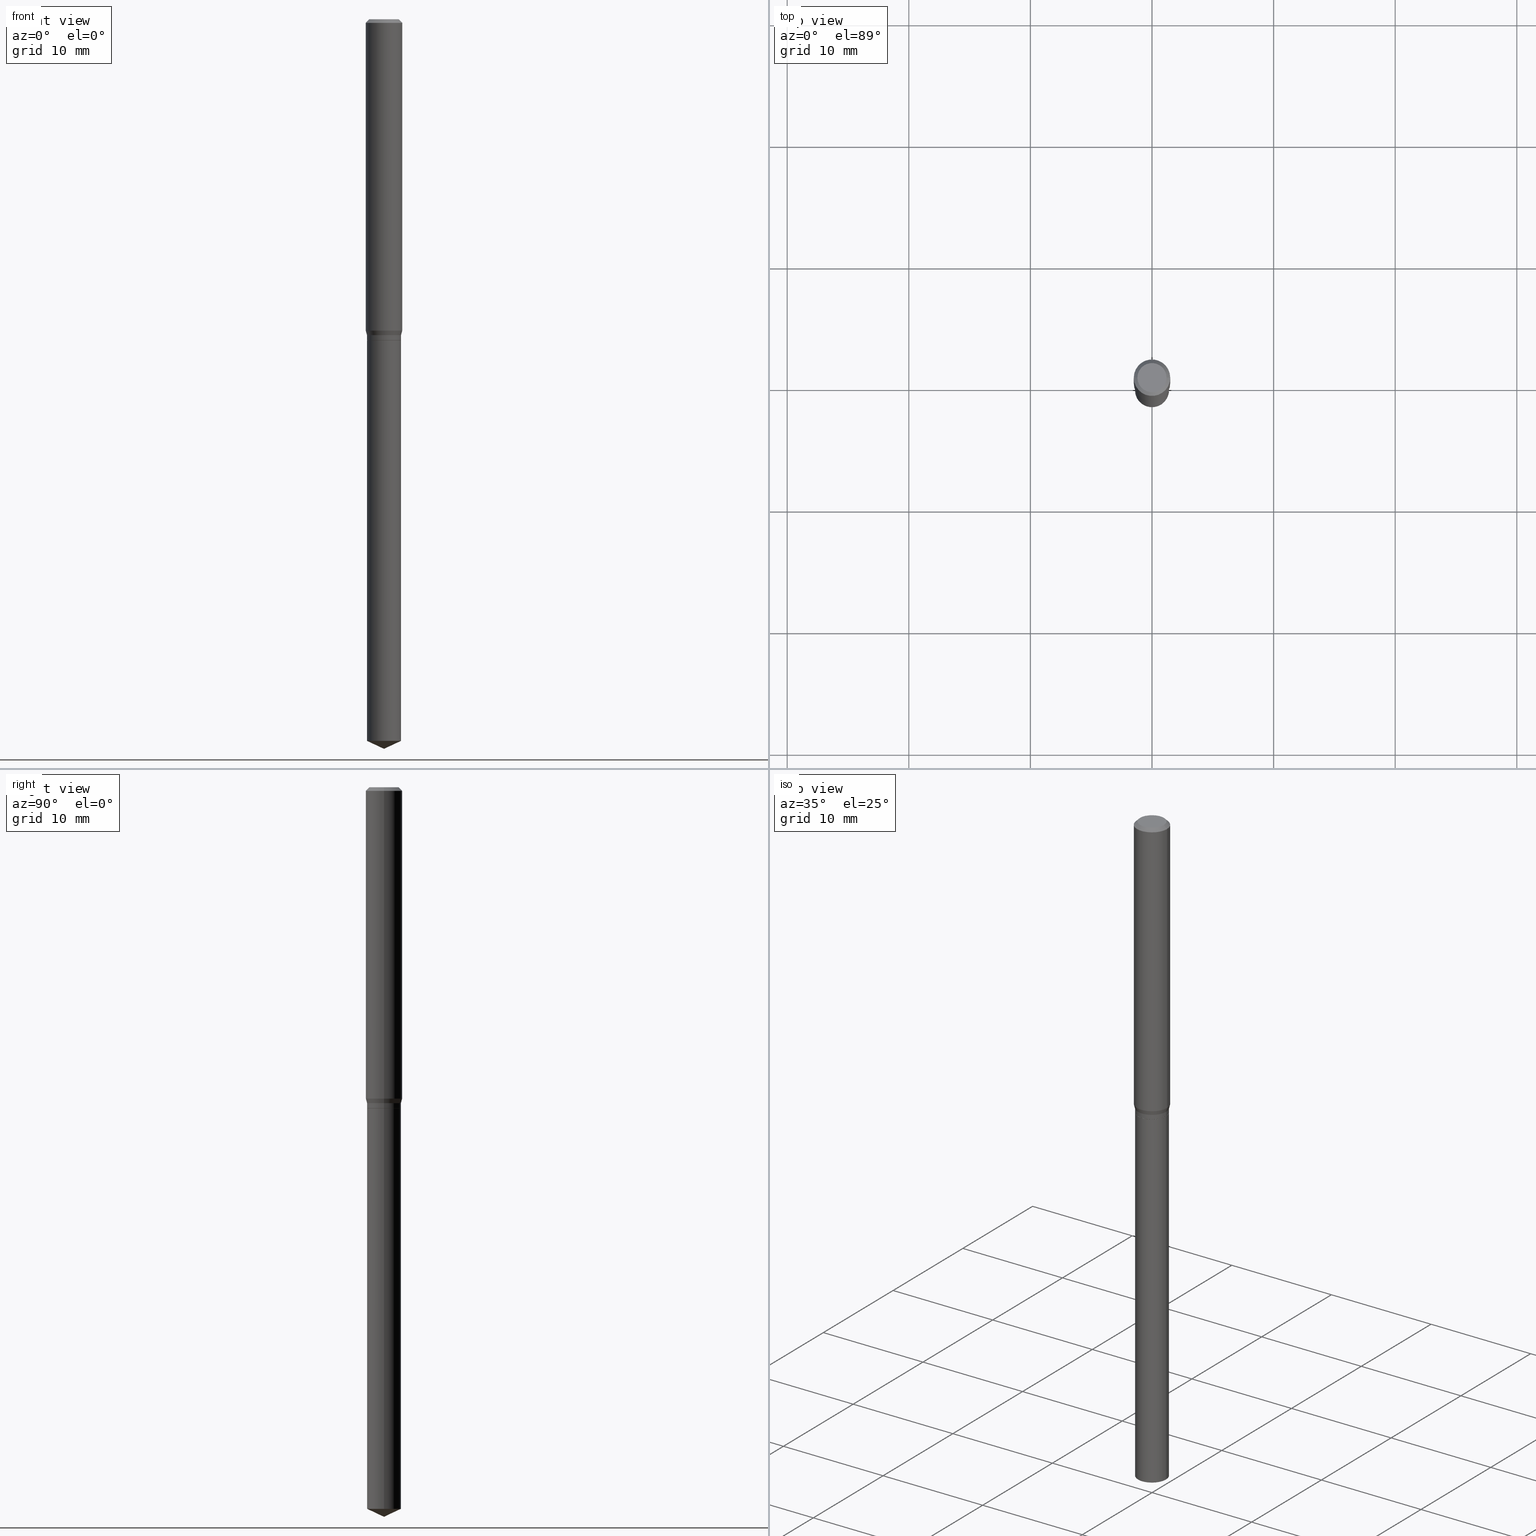
[diagram: canonical four-view strip — front | top / right | iso, engineering-drawing reading convention]
A machine part, canonical four-view strip (front | top / right | iso — engineering-drawing reading convention). The complete STEP part file that produces these views, byte-faithful:
ISO-10303-21;
HEADER;
FILE_DESCRIPTION (( 'STEP AP203' ),
    '1' );
FILE_NAME ('07697.STEP',
    '2024-04-24T01:14:30',
    ( '' ),
    ( '' ),
    'SwSTEP 2.0',
    'SolidWorks 2023',
    '' );
FILE_SCHEMA (( 'CONFIG_CONTROL_DESIGN' ));
ENDSEC;

DATA;
#1 = CARTESIAN_POINT ( 'NONE',  ( 4.132873053354867254E-48, -5.900647395337818946E-34, -1.690012582823346072E-19 ) ) ;
#2 = DIRECTION ( 'NONE',  ( -2.445468806185136597E-29, 3.491481338843145583E-15, 1.000000000000000000 ) ) ;
#3 = PERSON_AND_ORGANIZATION ( #315, #102 ) ;
#4 = CARTESIAN_POINT ( 'NONE',  ( -2.731847993663685378E-16, -8.247577218615278049E-15, -2.362200000000000077 ) ) ;
#5 = EDGE_CURVE ( 'NONE', #15, #290, #286, .T. ) ;
#6 = DATE_TIME_ROLE ( 'classification_date' ) ;
#7 = AXIS2_PLACEMENT_3D ( 'NONE', #425, #387, #307 ) ;
#8 = CARTESIAN_POINT ( 'NONE',  ( 0.05509999999999999620, -3.956197505043167582E-15, -1.022900000000000142 ) ) ;
#9 = LINE ( 'NONE', #4, #317 ) ;
#10 = DIRECTION ( 'NONE',  ( -2.445468806185136877E-29, 3.491481338843145188E-15, 1.000000000000000000 ) ) ;
#11 = ORIENTED_EDGE ( 'NONE', *, *, #232, .T. ) ;
#12 = LOCAL_TIME ( 21, 14, 30.00000000000000000, #32 ) ;
#13 = DIRECTION ( 'NONE',  ( 1.000000000000000000, -6.982962677686265922E-15, 0.000000000000000000 ) ) ;
#14 = EDGE_LOOP ( 'NONE', ( #40, #398, #360, #363 ) ) ;
#15 = VERTEX_POINT ( 'NONE', #148 ) ;
#16 = EDGE_CURVE ( 'NONE', #220, #173, #117, .T. ) ;
#17 = ORIENTED_EDGE ( 'NONE', *, *, #314, .T. ) ;
#18 = FACE_OUTER_BOUND ( 'NONE', #392, .T. ) ;
#19 = EDGE_LOOP ( 'NONE', ( #282, #252, #92, #133 ) ) ;
#20 = CARTESIAN_POINT ( 'NONE',  ( 7.425460077698912185E-30, -6.205708865675813808E-15, -1.039400000000000324 ) ) ;
#21 = ORIENTED_EDGE ( 'NONE', *, *, #110, .T. ) ;
#22 = CARTESIAN_POINT ( 'NONE',  ( 2.541820277148831753E-29, -3.629045703593565980E-15, -1.039400000000000324 ) ) ;
#23 = ADVANCED_FACE ( 'NONE', ( #331 ), #486, .T. ) ;
#24 = CIRCLE ( 'NONE', #212, 0.05509999999999999620 ) ;
#25 = AXIS2_PLACEMENT_3D ( 'NONE', #20, #67, #216 ) ;
#26 = DIRECTION ( 'NONE',  ( -2.445468806185136877E-29, 3.491481338843145188E-15, 1.000000000000000000 ) ) ;
#27 = ORIENTED_EDGE ( 'NONE', *, *, #267, .F. ) ;
#28 = DIRECTION ( 'NONE',  ( -2.445468806185136597E-29, 3.491481338843145583E-15, 1.000000000000000000 ) ) ;
#29 = APPLICATION_PROTOCOL_DEFINITION ( 'international standard', 'config_control_design', 1994, #445 ) ;
#30 = EDGE_CURVE ( 'NONE', #469, #181, #187, .T. ) ;
#31 = ORIENTED_EDGE ( 'NONE', *, *, #144, .F. ) ;
#32 = COORDINATED_UNIVERSAL_TIME_OFFSET ( 5, 0, .BEHIND. ) ;
#33 = AXIS2_PLACEMENT_3D ( 'NONE', #288, #253, #368 ) ;
#34 = APPROVAL_PERSON_ORGANIZATION ( #42, #490, #456 ) ;
#35 = CARTESIAN_POINT ( 'NONE',  ( 2.540597542745738951E-29, -3.627299962924145266E-15, -1.038900000000000379 ) ) ;
#36 = PERSON_AND_ORGANIZATION_ROLE ( 'design_owner' ) ;
#37 = EDGE_CURVE ( 'NONE', #290, #311, #24, .T. ) ;
#38 = DIRECTION ( 'NONE',  ( -2.445468806185136597E-29, 3.491481338843145583E-15, 1.000000000000000000 ) ) ;
#39 = DATE_AND_TIME ( #123, #12 ) ;
#40 = ORIENTED_EDGE ( 'NONE', *, *, #30, .F. ) ;
#41 = CARTESIAN_POINT ( 'NONE',  ( 2.540597542745738951E-29, -3.627299962924145266E-15, -1.038900000000000379 ) ) ;
#42 = PERSON_AND_ORGANIZATION ( #315, #102 ) ;
#43 = CIRCLE ( 'NONE', #385, 0.05510000000000000314 ) ;
#44 = DIRECTION ( 'NONE',  ( 1.000000000000000000, 0.000000000000000000, 0.000000000000000000 ) ) ;
#45 = CYLINDRICAL_SURFACE ( 'NONE', #344, 0.05509999999999999620 ) ;
#46 = ORIENTED_EDGE ( 'NONE', *, *, #110, .F. ) ;
#47 = CARTESIAN_POINT ( 'NONE',  ( 2.465419917206395348E-29, -3.519966237789199731E-15, -1.008158399310102649 ) ) ;
#48 = ORIENTED_EDGE ( 'NONE', *, *, #477, .T. ) ;
#49 = APPROVAL ( #190, 'UNSPECIFIED' ) ;
#50 = CARTESIAN_POINT ( 'NONE',  ( 2.888098660104663766E-31, -4.123439461173779647E-17, -0.01181000000000007044 ) ) ;
#51 = VECTOR ( 'NONE', #222, 39.37007874015748143 ) ;
#52 = ORIENTED_EDGE ( 'NONE', *, *, #260, .F. ) ;
#53 = DIRECTION ( 'NONE',  ( -2.445468806185136597E-29, 3.491481338843145583E-15, 1.000000000000000000 ) ) ;
#54 = CC_DESIGN_PERSON_AND_ORGANIZATION_ASSIGNMENT ( #412, #262, ( #177 ) ) ;
#55 = EDGE_LOOP ( 'NONE', ( #451, #231, #21, #475 ) ) ;
#56 = ORIENTED_EDGE ( 'NONE', *, *, #127, .F. ) ;
#57 =( NAMED_UNIT ( * ) PLANE_ANGLE_UNIT ( ) SI_UNIT ( $, .RADIAN. ) );
#58 = DIRECTION ( 'NONE',  ( -2.445468806185136597E-29, 3.491481338843145583E-15, 1.000000000000000000 ) ) ;
#59 = VECTOR ( 'NONE', #66, 39.37007874015748143 ) ;
#60 = AXIS2_PLACEMENT_3D ( 'NONE', #47, #427, #199 ) ;
#61 = ORIENTED_EDGE ( 'NONE', *, *, #151, .T. ) ;
#62 = DIRECTION ( 'NONE',  ( -2.445468806185136597E-29, 3.491481338843145583E-15, 1.000000000000000000 ) ) ;
#63 = EDGE_LOOP ( 'NONE', ( #17, #313 ) ) ;
#64 = EDGE_CURVE ( 'NONE', #323, #173, #182, .T. ) ;
#65 = FACE_OUTER_BOUND ( 'NONE', #63, .T. ) ;
#66 = DIRECTION ( 'NONE',  ( -2.445468806185136877E-29, 3.491481338843145188E-15, 1.000000000000000000 ) ) ;
#67 = DIRECTION ( 'NONE',  ( 2.438088387897960049E-29, -3.491481338843145188E-15, -1.000000000000000000 ) ) ;
#68 = CONICAL_SURFACE ( 'NONE', #483, 84.42940631927126560, 1.134464013796302018 ) ;
#69 = CARTESIAN_POINT ( 'NONE',  ( -0.05905000000000006077, 4.195754854663395916E-16, -2.904631170795524694E-30 ) ) ;
#70 = LOCAL_TIME ( 21, 14, 30.00000000000000000, #299 ) ;
#71 = ADVANCED_FACE ( 'NONE', ( #115 ), #485, .F. ) ;
#72 = CARTESIAN_POINT ( 'NONE',  ( 2.541820277148831753E-29, -3.629045703593566769E-15, -1.039400000000000324 ) ) ;
#73 = FACE_OUTER_BOUND ( 'NONE', #170, .T. ) ;
#74 = CALENDAR_DATE ( 2024, 23, 4 ) ;
#75 = CARTESIAN_POINT ( 'NONE',  ( 2.541820277148831753E-29, -3.629045703593565980E-15, -1.039400000000000324 ) ) ;
#76 = AXIS2_PLACEMENT_3D ( 'NONE', #160, #122, #237 ) ;
#77 = DIRECTION ( 'NONE',  ( -2.445468806185136597E-29, 3.491481338843145583E-15, 1.000000000000000000 ) ) ;
#78 = DATE_AND_TIME ( #416, #168 ) ;
#79 = ORIENTED_EDGE ( 'NONE', *, *, #346, .F. ) ;
#80 = EDGE_CURVE ( 'NONE', #352, #402, #457, .T. ) ;
#81 =( CONVERSION_BASED_UNIT ( 'INCH', #476 ) LENGTH_UNIT ( ) NAMED_UNIT ( #106 ) );
#82 = DIRECTION ( 'NONE',  ( -2.445468806185136597E-29, 3.491481338843145583E-15, 1.000000000000000000 ) ) ;
#83 = APPROVAL_DATE_TIME ( #39, #49 ) ;
#84 = CARTESIAN_POINT ( 'NONE',  ( -0.04724000000000000421, 3.504923541997677355E-16, -3.380025165670481712E-19 ) ) ;
#85 = DATE_TIME_ROLE ( 'creation_date' ) ;
#86 = CARTESIAN_POINT ( 'NONE',  ( 2.501470041846776591E-29, -3.571436261502653996E-15, -1.022900000000000142 ) ) ;
#87 = ADVANCED_FACE ( 'NONE', ( #154 ), #109, .T. ) ;
#88 = ORIENTED_EDGE ( 'NONE', *, *, #238, .T. ) ;
#89 = LINE ( 'NONE', #230, #112 ) ;
#90 = UNCERTAINTY_MEASURE_WITH_UNIT (LENGTH_MEASURE( 1.000000000000000082E-05 ), #81, 'distance_accuracy_value', 'NONE');
#91 = EDGE_LOOP ( 'NONE', ( #394, #179, #209, #478 ) ) ;
#92 = ORIENTED_EDGE ( 'NONE', *, *, #120, .F. ) ;
#93 = DIRECTION ( 'NONE',  ( -2.445468806185136877E-29, 3.491481338843145188E-15, 1.000000000000000000 ) ) ;
#94 = AXIS2_PLACEMENT_3D ( 'NONE', #35, #195, #482 ) ;
#95 = EDGE_CURVE ( 'NONE', #136, #15, #261, .T. ) ;
#96 = ORIENTED_EDGE ( 'NONE', *, *, #444, .T. ) ;
#97 = EDGE_LOOP ( 'NONE', ( #275, #103, #145, #46 ) ) ;
#98 = CARTESIAN_POINT ( 'NONE',  ( -0.05905000000000011628, -3.100390752322860238E-15, -1.008158399310102649 ) ) ;
#99 = ORIENTED_EDGE ( 'NONE', *, *, #164, .F. ) ;
#100 = DIRECTION ( 'NONE',  ( 0.2588190451025215721, 1.565188264969619995E-15, 0.9659258262890679791 ) ) ;
#101 = CONICAL_SURFACE ( 'NONE', #308, 0.05904999999999999832, 0.7853981633974452814 ) ;
#102 = ORGANIZATION ( 'UNSPECIFIED', 'UNSPECIFIED', '' ) ;
#103 = ORIENTED_EDGE ( 'NONE', *, *, #306, .T. ) ;
#104 = ADVANCED_FACE ( 'NONE', ( #73 ), #153, .T. ) ;
#105 = LINE ( 'NONE', #361, #390 ) ;
#106 = DIMENSIONAL_EXPONENTS ( 1.000000000000000000, 0.000000000000000000, 0.000000000000000000, 0.000000000000000000, 0.000000000000000000, 0.000000000000000000, 0.000000000000000000 ) ;
#107 = ORIENTED_EDGE ( 'NONE', *, *, #37, .F. ) ;
#108 = CARTESIAN_POINT ( 'NONE',  ( -0.05509999999999999620, -7.766359613999372062E-15, -2.336506448035659211 ) ) ;
#109 = CYLINDRICAL_SURFACE ( 'NONE', #329, 0.05510000000000000314 ) ;
#110 = EDGE_CURVE ( 'NONE', #204, #402, #289, .T. ) ;
#111 = AXIS2_PLACEMENT_3D ( 'NONE', #371, #448, #453 ) ;
#112 = VECTOR ( 'NONE', #335, 39.37007874015748143 ) ;
#113 = DIRECTION ( 'NONE',  ( -0.7071067811864205632, 7.493145998869895043E-15, 0.7071067811866742492 ) ) ;
#114 = CC_DESIGN_APPROVAL ( #49, ( #460 ) ) ;
#115 = FACE_OUTER_BOUND ( 'NONE', #141, .T. ) ;
#116 = DATE_AND_TIME ( #74, #424 ) ;
#117 = LINE ( 'NONE', #328, #59 ) ;
#118 = CYLINDRICAL_SURFACE ( 'NONE', #277, 0.05905000000000006077 ) ;
#119 = SECURITY_CLASSIFICATION_LEVEL ( 'unclassified' ) ;
#120 = EDGE_CURVE ( 'NONE', #15, #181, #191, .T. ) ;
#121 = DIRECTION ( 'NONE',  ( -2.445468806185136597E-29, 3.491481338843145583E-15, 1.000000000000000000 ) ) ;
#122 = DIRECTION ( 'NONE',  ( -2.445468806185136597E-29, 3.491481338843145583E-15, 1.000000000000000000 ) ) ;
#123 = CALENDAR_DATE ( 2024, 23, 4 ) ;
#124 = CARTESIAN_POINT ( 'NONE',  ( 0.000000000000000000, 0.000000000000000000, 0.000000000000000000 ) ) ;
#125 = LINE ( 'NONE', #341, #161 ) ;
#126 = DATE_AND_TIME ( #454, #337 ) ;
#127 = EDGE_CURVE ( 'NONE', #318, #402, #447, .T. ) ;
#128 = CARTESIAN_POINT ( 'NONE',  ( 2.541820277148832313E-29, -3.629045703593567558E-15, -1.039400000000000546 ) ) ;
#129 = CIRCLE ( 'NONE', #138, 0.05460000000000000270 ) ;
#130 = AXIS2_PLACEMENT_3D ( 'NONE', #137, #53, #354 ) ;
#131 = CARTESIAN_POINT ( 'NONE',  ( 0.000000000000000000, 0.000000000000000000, 0.000000000000000000 ) ) ;
#132 = ORIENTED_EDGE ( 'NONE', *, *, #5, .F. ) ;
#133 = ORIENTED_EDGE ( 'NONE', *, *, #95, .F. ) ;
#134 = ADVANCED_FACE ( 'NONE', ( #370 ), #101, .T. ) ;
#135 = MECHANICAL_CONTEXT ( 'NONE', #432, 'mechanical' ) ;
#136 = VERTEX_POINT ( 'NONE', #455 ) ;
#137 = CARTESIAN_POINT ( 'NONE',  ( 8.265746106709734507E-48, -1.180129479067563789E-33, -3.380025165646692144E-19 ) ) ;
#138 = AXIS2_PLACEMENT_3D ( 'NONE', #302, #338, #203 ) ;
#139 = VERTEX_POINT ( 'NONE', #266 ) ;
#140 = CARTESIAN_POINT ( 'NONE',  ( 8.265746106709734507E-48, -1.180129479067563789E-33, -3.380025165646692144E-19 ) ) ;
#141 = EDGE_LOOP ( 'NONE', ( #437, #96 ) ) ;
#142 = PRODUCT_DEFINITION_SHAPE ( 'NONE', 'NONE',  #177 ) ;
#143 = CARTESIAN_POINT ( 'NONE',  ( -0.05509999999999999620, -3.207859064809584554E-15, -1.022900000000000142 ) ) ;
#144 = EDGE_CURVE ( 'NONE', #208, #318, #200, .T. ) ;
#145 = ORIENTED_EDGE ( 'NONE', *, *, #80, .T. ) ;
#146 = CARTESIAN_POINT ( 'NONE',  ( 0.05904999999999999832, -4.463468013801466955E-16, -0.01181000000000007044 ) ) ;
#147 = CONICAL_SURFACE ( 'NONE', #240, 0.05904999999999999832, 0.7853981633974452814 ) ;
#148 = CARTESIAN_POINT ( 'NONE',  ( 0.05509999999999999620, -4.012061206464658852E-15, -1.038900000000000379 ) ) ;
#149 = CARTESIAN_POINT ( 'NONE',  ( 2.501470041846776591E-29, -3.571436261502653996E-15, -1.022900000000000142 ) ) ;
#150 = CARTESIAN_POINT ( 'NONE',  ( 2.888098660104663766E-31, -4.123439461173779647E-17, -0.01181000000000007044 ) ) ;
#151 = EDGE_CURVE ( 'NONE', #318, #208, #167, .T. ) ;
#152 = CARTESIAN_POINT ( 'NONE',  ( 0.05509999999999999620, -3.847612435405132409E-16, 2.686773403463560667E-30 ) ) ;
#153 = CONICAL_SURFACE ( 'NONE', #397, 0.05509999999999999620, 0.2617993877991502960 ) ;
#154 = FACE_OUTER_BOUND ( 'NONE', #440, .T. ) ;
#155 = DIRECTION ( 'NONE',  ( -2.445468806185136597E-29, 3.491481338843145583E-15, 1.000000000000000000 ) ) ;
#156 = APPROVAL_DATE_TIME ( #419, #490 ) ;
#157 = ADVANCED_FACE ( 'NONE', ( #268 ), #45, .T. ) ;
#158 = DIRECTION ( 'NONE',  ( -1.000000000000000000, 6.982962677686266711E-15, 0.000000000000000000 ) ) ;
#159 = SHAPE_DEFINITION_REPRESENTATION ( #142, #364 ) ;
#160 = CARTESIAN_POINT ( 'NONE',  ( 2.888098660104663766E-31, -4.123439461173779647E-17, -0.01181000000000007044 ) ) ;
#161 = VECTOR ( 'NONE', #10, 39.37007874015748143 ) ;
#162 = CARTESIAN_POINT ( 'NONE',  ( 0.000000000000000000, 0.000000000000000000, 0.000000000000000000 ) ) ;
#163 = DIRECTION ( 'NONE',  ( 1.000000000000000000, -6.982962677686274599E-15, 0.000000000000000000 ) ) ;
#164 = EDGE_CURVE ( 'NONE', #136, #469, #336, .T. ) ;
#165 = DIRECTION ( 'NONE',  ( 1.000000000000000000, -6.982962677686265922E-15, 0.000000000000000000 ) ) ;
#166 = LINE ( 'NONE', #146, #353 ) ;
#167 = CIRCLE ( 'NONE', #60, 0.05905000000000011628 ) ;
#168 = LOCAL_TIME ( 21, 14, 30.00000000000000000, #196 ) ;
#169 = DIRECTION ( 'NONE',  ( 1.000000000000000000, -6.982962677686265133E-15, 0.000000000000000000 ) ) ;
#170 = EDGE_LOOP ( 'NONE', ( #276, #88, #309, #426 ) ) ;
#171 = EDGE_CURVE ( 'NONE', #402, #352, #207, .T. ) ;
#172 = ORIENTED_EDGE ( 'NONE', *, *, #463, .F. ) ;
#173 = VERTEX_POINT ( 'NONE', #269 ) ;
#174 = VECTOR ( 'NONE', #26, 39.37007874015748143 ) ;
#175 = CC_DESIGN_APPROVAL ( #490, ( #177 ) ) ;
#176 = ORIENTED_EDGE ( 'NONE', *, *, #120, .T. ) ;
#177 = PRODUCT_DEFINITION ( 'UNKNOWN', '', #185, #396 ) ;
#178 = CARTESIAN_POINT ( 'NONE',  ( 2.731847993664840566E-16, -8.247577218615281204E-15, -2.362200000000000077 ) ) ;
#179 = ORIENTED_EDGE ( 'NONE', *, *, #127, .T. ) ;
#180 = CARTESIAN_POINT ( 'NONE',  ( -0.05510000000000000314, -5.501948135094560496E-15, -1.039400000000000324 ) ) ;
#181 = VERTEX_POINT ( 'NONE', #389 ) ;
#182 = CIRCLE ( 'NONE', #271, 0.05510000000000000314 ) ;
#183 = DIRECTION ( 'NONE',  ( 1.000000000000000000, -6.982962677686266711E-15, 4.876185090822587894E-29 ) ) ;
#184 = AXIS2_PLACEMENT_3D ( 'NONE', #249, #58, #442 ) ;
#185 = PRODUCT_DEFINITION_FORMATION_WITH_SPECIFIED_SOURCE ( 'ANY', '', #251, .NOT_KNOWN. ) ;
#186 = ADVANCED_FACE ( 'NONE', ( #272 ), #147, .T. ) ;
#187 = LINE ( 'NONE', #228, #351 ) ;
#188 = ORIENTED_EDGE ( 'NONE', *, *, #211, .T. ) ;
#189 = DIRECTION ( 'NONE',  ( 1.000000000000000000, -6.982962677686265133E-15, 0.000000000000000000 ) ) ;
#190 = APPROVAL_STATUS ( 'not_yet_approved' ) ;
#191 = CIRCLE ( 'NONE', #94, 0.05509999999999999620 ) ;
#192 = CONICAL_SURFACE ( 'NONE', #386, 0.05509999999999999620, 0.2617993877991502960 ) ;
#193 = EDGE_LOOP ( 'NONE', ( #56, #61, #480, #284 ) ) ;
#194 =( GEOMETRIC_REPRESENTATION_CONTEXT ( 3 ) GLOBAL_UNCERTAINTY_ASSIGNED_CONTEXT ( ( #90 ) ) GLOBAL_UNIT_ASSIGNED_CONTEXT ( ( #81, #57, #382 ) ) REPRESENTATION_CONTEXT ( 'NONE', 'WORKASPACE' ) );
#195 = DIRECTION ( 'NONE',  ( -2.445468806185136597E-29, 3.491481338843145583E-15, 1.000000000000000000 ) ) ;
#196 = COORDINATED_UNIVERSAL_TIME_OFFSET ( 5, 0, .BEHIND. ) ;
#197 = DIRECTION ( 'NONE',  ( -1.000000000000000000, 6.982962677686266711E-15, 0.000000000000000000 ) ) ;
#198 = APPROVAL_STATUS ( 'not_yet_approved' ) ;
#199 = DIRECTION ( 'NONE',  ( 1.000000000000000000, -6.982962677686266711E-15, 0.000000000000000000 ) ) ;
#200 = CIRCLE ( 'NONE', #273, 0.05905000000000011628 ) ;
#201 = CC_DESIGN_PERSON_AND_ORGANIZATION_ASSIGNMENT ( #381, #229, ( #185 ) ) ;
#202 = CARTESIAN_POINT ( 'NONE',  ( 0.000000000000000000, 0.000000000000000000, 0.000000000000000000 ) ) ;
#203 = DIRECTION ( 'NONE',  ( 1.000000000000000000, -6.982962677686265133E-15, 0.000000000000000000 ) ) ;
#204 = VERTEX_POINT ( 'NONE', #84 ) ;
#205 = PLANE ( 'NONE',  #25 ) ;
#206 = APPLICATION_PROTOCOL_DEFINITION ( 'international standard', 'config_control_design', 1994, #432 ) ;
#207 = CIRCLE ( 'NONE', #76, 0.05904999999999999832 ) ;
#208 = VERTEX_POINT ( 'NONE', #468 ) ;
#209 = ORIENTED_EDGE ( 'NONE', *, *, #80, .F. ) ;
#210 = ORIENTED_EDGE ( 'NONE', *, *, #293, .F. ) ;
#211 = EDGE_CURVE ( 'NONE', #347, #220, #414, .T. ) ;
#212 = AXIS2_PLACEMENT_3D ( 'NONE', #259, #325, #409 ) ;
#213 = AXIS2_PLACEMENT_3D ( 'NONE', #22, #484, #321 ) ;
#214 = CARTESIAN_POINT ( 'NONE',  ( 0.05905000000000006077, -4.123439461173744764E-16, 2.879382386107503023E-30 ) ) ;
#215 = ORIENTED_EDGE ( 'NONE', *, *, #238, .F. ) ;
#216 = DIRECTION ( 'NONE',  ( -1.000000000000000000, 6.982962677686265922E-15, -4.876176775795935793E-29 ) ) ;
#217 = ORIENTED_EDGE ( 'NONE', *, *, #314, .F. ) ;
#218 = LINE ( 'NONE', #214, #449 ) ;
#219 = ADVANCED_FACE ( 'NONE', ( #235 ), #233, .F. ) ;
#220 = VERTEX_POINT ( 'NONE', #236 ) ;
#221 = DIRECTION ( 'NONE',  ( -2.445468806185136877E-29, 3.491481338843145188E-15, 1.000000000000000000 ) ) ;
#222 = DIRECTION ( 'NONE',  ( -2.445468806185136877E-29, 3.491481338843145188E-15, 1.000000000000000000 ) ) ;
#223 = ORIENTED_EDGE ( 'NONE', *, *, #37, .T. ) ;
#224 = CARTESIAN_POINT ( 'NONE',  ( 2.501470041846776591E-29, -3.571436261502653996E-15, -1.022900000000000142 ) ) ;
#225 = APPROVAL_ROLE ( '' ) ;
#226 = ADVANCED_FACE ( 'NONE', ( #383 ), #118, .T. ) ;
#227 = AXIS2_PLACEMENT_3D ( 'NONE', #86, #339, #380 ) ;
#228 = CARTESIAN_POINT ( 'NONE',  ( -0.05460000000000000270, -3.241089369868552196E-15, -1.039400000000000546 ) ) ;
#229 = PERSON_AND_ORGANIZATION_ROLE ( 'design_supplier' ) ;
#230 = CARTESIAN_POINT ( 'NONE',  ( -0.05509999999999999620, -3.179927214098839314E-15, -1.022900000000000142 ) ) ;
#231 = ORIENTED_EDGE ( 'NONE', *, *, #379, .F. ) ;
#232 = EDGE_CURVE ( 'NONE', #181, #15, #441, .T. ) ;
#233 = PLANE ( 'NONE',  #7 ) ;
#234 = AXIS2_PLACEMENT_3D ( 'NONE', #150, #254, #487 ) ;
#235 = FACE_OUTER_BOUND ( 'NONE', #247, .T. ) ;
#236 = CARTESIAN_POINT ( 'NONE',  ( 0.05509999999999999620, -8.542629904943700330E-15, -2.336506448035659211 ) ) ;
#237 = DIRECTION ( 'NONE',  ( 1.000000000000000000, -6.982962677686266711E-15, 0.000000000000000000 ) ) ;
#238 = EDGE_CURVE ( 'NONE', #311, #290, #248, .T. ) ;
#239 = ORIENTED_EDGE ( 'NONE', *, *, #64, .F. ) ;
#240 = AXIS2_PLACEMENT_3D ( 'NONE', #274, #418, #158 ) ;
#241 = CARTESIAN_POINT ( 'NONE',  ( 5.713853634121637079E-29, -8.157868661403186744E-15, -2.336506448035659211 ) ) ;
#242 = AXIS2_PLACEMENT_3D ( 'NONE', #140, #256, #183 ) ;
#243 = ORIENTED_EDGE ( 'NONE', *, *, #293, .T. ) ;
#244 = PRODUCT_RELATED_PRODUCT_CATEGORY ( 'detail', '', ( #251 ) ) ;
#245 = EDGE_LOOP ( 'NONE', ( #223, #407, #31, #79 ) ) ;
#246 = DIRECTION ( 'NONE',  ( 1.000000000000000000, -6.982962677686267499E-15, 0.000000000000000000 ) ) ;
#247 = EDGE_LOOP ( 'NONE', ( #99, #27 ) ) ;
#248 = CIRCLE ( 'NONE', #227, 0.05509999999999999620 ) ;
#249 = CARTESIAN_POINT ( 'NONE',  ( 2.541820277148832313E-29, -3.629045703593567558E-15, -1.039400000000000546 ) ) ;
#250 = APPROVAL_PERSON_ORGANIZATION ( #384, #279, #333 ) ;
#251 = PRODUCT ( '07697', '07697', '', ( #135 ) ) ;
#252 = ORIENTED_EDGE ( 'NONE', *, *, #30, .T. ) ;
#253 = DIRECTION ( 'NONE',  ( -2.445468806185136597E-29, 3.491481338843145583E-15, 1.000000000000000000 ) ) ;
#254 = DIRECTION ( 'NONE',  ( -2.445468806185136597E-29, 3.491481338843145583E-15, 1.000000000000000000 ) ) ;
#255 = EDGE_CURVE ( 'NONE', #311, #318, #89, .T. ) ;
#256 = DIRECTION ( 'NONE',  ( -2.445468806185136597E-29, 3.491481338843145583E-15, 1.000000000000000000 ) ) ;
#257 = DIRECTION ( 'NONE',  ( -1.000000000000000000, 6.982962677686265922E-15, -4.876176775795935793E-29 ) ) ;
#258 = CIRCLE ( 'NONE', #242, 0.04724000000000000421 ) ;
#259 = CARTESIAN_POINT ( 'NONE',  ( 2.501470041846776591E-29, -3.571436261502653996E-15, -1.022900000000000142 ) ) ;
#260 = EDGE_CURVE ( 'NONE', #139, #347, #9, .T. ) ;
#261 = LINE ( 'NONE', #411, #301 ) ;
#262 = PERSON_AND_ORGANIZATION_ROLE ( 'creator' ) ;
#263 = DIRECTION ( 'NONE',  ( 2.438088387897960049E-29, -3.491481338843145188E-15, -1.000000000000000000 ) ) ;
#264 = PERSON_AND_ORGANIZATION ( #315, #102 ) ;
#265 = VECTOR ( 'NONE', #281, 39.37007874015748854 ) ;
#266 = CARTESIAN_POINT ( 'NONE',  ( 5.776686413970529753E-29, -8.247577218615279626E-15, -2.362200000000000077 ) ) ;
#267 = EDGE_CURVE ( 'NONE', #469, #136, #129, .T. ) ;
#268 = FACE_OUTER_BOUND ( 'NONE', #342, .T. ) ;
#269 = CARTESIAN_POINT ( 'NONE',  ( 0.05510000000000000314, -4.013806947134079566E-15, -1.039400000000000324 ) ) ;
#270 = COORDINATED_UNIVERSAL_TIME_OFFSET ( 5, 0, .BEHIND. ) ;
#271 = AXIS2_PLACEMENT_3D ( 'NONE', #72, #28, #189 ) ;
#272 = FACE_OUTER_BOUND ( 'NONE', #97, .T. ) ;
#273 = AXIS2_PLACEMENT_3D ( 'NONE', #415, #461, #332 ) ;
#274 = CARTESIAN_POINT ( 'NONE',  ( 2.888098660104663766E-31, -4.123439461173779647E-17, -0.01181000000000007044 ) ) ;
#275 = ORIENTED_EDGE ( 'NONE', *, *, #444, .F. ) ;
#276 = ORIENTED_EDGE ( 'NONE', *, *, #255, .F. ) ;
#277 = AXIS2_PLACEMENT_3D ( 'NONE', #202, #38, #304 ) ;
#278 = CARTESIAN_POINT ( 'NONE',  ( -0.05460000000000000270, -3.238440142694440995E-15, -1.039400000000000546 ) ) ;
#279 = APPROVAL ( #198, 'UNSPECIFIED' ) ;
#280 = ORIENTED_EDGE ( 'NONE', *, *, #477, .F. ) ;
#281 = DIRECTION ( 'NONE',  ( 0.9063077870366447186, -4.853149677051304637E-15, 0.4226182617407103770 ) ) ;
#282 = ORIENTED_EDGE ( 'NONE', *, *, #164, .T. ) ;
#283 = DIRECTION ( 'NONE',  ( -2.445468806185136597E-29, 3.491481338843145583E-15, 1.000000000000000000 ) ) ;
#284 = ORIENTED_EDGE ( 'NONE', *, *, #171, .F. ) ;
#285 = FACE_OUTER_BOUND ( 'NONE', #19, .T. ) ;
#286 = LINE ( 'NONE', #152, #174 ) ;
#287 = CC_DESIGN_DATE_AND_TIME_ASSIGNMENT ( #78, #6, ( #460 ) ) ;
#288 = CARTESIAN_POINT ( 'NONE',  ( -9.050161304213721862E-28, 1.292123180114298104E-13, 37.00787874015748002 ) ) ;
#289 = LINE ( 'NONE', #297, #291 ) ;
#290 = VERTEX_POINT ( 'NONE', #8 ) ;
#291 = VECTOR ( 'NONE', #404, 39.37007874015748143 ) ;
#292 = AXIS2_PLACEMENT_3D ( 'NONE', #41, #466, #165 ) ;
#293 = EDGE_CURVE ( 'NONE', #181, #311, #125, .T. ) ;
#294 = APPROVAL_PERSON_ORGANIZATION ( #3, #49, #225 ) ;
#295 = DIRECTION ( 'NONE',  ( -2.445468806185136597E-29, 3.491481338843145583E-15, 1.000000000000000000 ) ) ;
#296 = COORDINATED_UNIVERSAL_TIME_OFFSET ( 5, 0, .BEHIND. ) ;
#297 = CARTESIAN_POINT ( 'NONE',  ( -0.05904999999999999832, 3.711095515056362547E-16, -0.01181000000000007044 ) ) ;
#298 = DIRECTION ( 'NONE',  ( 1.000000000000000000, -6.982962677686265133E-15, 0.000000000000000000 ) ) ;
#299 = COORDINATED_UNIVERSAL_TIME_OFFSET ( 5, 0, .BEHIND. ) ;
#300 = FACE_OUTER_BOUND ( 'NONE', #433, .T. ) ;
#301 = VECTOR ( 'NONE', #410, 39.37007874015748854 ) ;
#302 = CARTESIAN_POINT ( 'NONE',  ( 2.541820277148832313E-29, -3.629045703593567558E-15, -1.039400000000000546 ) ) ;
#303 = CARTESIAN_POINT ( 'NONE',  ( -0.05510000000000000314, -3.237536656189751298E-15, -1.039400000000000324 ) ) ;
#304 = DIRECTION ( 'NONE',  ( 1.000000000000000000, -6.982962677686266711E-15, 4.876176775795935793E-29 ) ) ;
#305 = DIRECTION ( 'NONE',  ( -0.9063077870366447186, 7.915267918739016209E-15, 0.4226182617407103770 ) ) ;
#306 = EDGE_CURVE ( 'NONE', #373, #352, #166, .T. ) ;
#307 = DIRECTION ( 'NONE',  ( 1.000000000000000000, -6.982962677686265922E-15, 4.876176775795935793E-29 ) ) ;
#308 = AXIS2_PLACEMENT_3D ( 'NONE', #50, #421, #197 ) ;
#309 = ORIENTED_EDGE ( 'NONE', *, *, #346, .T. ) ;
#310 = CARTESIAN_POINT ( 'NONE',  ( -9.050161304213721862E-28, 1.292123180114298104E-13, 37.00787874015748002 ) ) ;
#311 = VERTEX_POINT ( 'NONE', #143 ) ;
#312 = PERSON_AND_ORGANIZATION ( #315, #102 ) ;
#313 = ORIENTED_EDGE ( 'NONE', *, *, #64, .T. ) ;
#314 = EDGE_CURVE ( 'NONE', #173, #323, #43, .T. ) ;
#315 = PERSON ( 'UNSPECIFIED', 'UNSPECIFIED', 'UNSPECIFIED', ('UNSPECIFIED'), ('UNSPECIFIED'), ('UNSPECIFIED') ) ;
#316 = ORIENTED_EDGE ( 'NONE', *, *, #211, .F. ) ;
#317 = VECTOR ( 'NONE', #305, 39.37007874015748854 ) ;
#318 = VERTEX_POINT ( 'NONE', #98 ) ;
#319 = CARTESIAN_POINT ( 'NONE',  ( 0.04724000000000000421, -3.852183633974369345E-16, -3.380025165621689721E-19 ) ) ;
#320 = ORIENTED_EDGE ( 'NONE', *, *, #16, .F. ) ;
#321 = DIRECTION ( 'NONE',  ( 1.000000000000000000, -6.982962677686265133E-15, 0.000000000000000000 ) ) ;
#322 = ADVANCED_FACE ( 'NONE', ( #18 ), #68, .T. ) ;
#323 = VERTEX_POINT ( 'NONE', #180 ) ;
#324 = FACE_OUTER_BOUND ( 'NONE', #14, .T. ) ;
#325 = DIRECTION ( 'NONE',  ( -2.445468806185136597E-29, 3.491481338843145583E-15, 1.000000000000000000 ) ) ;
#326 = ORIENTED_EDGE ( 'NONE', *, *, #334, .T. ) ;
#327 = CC_DESIGN_PERSON_AND_ORGANIZATION_ASSIGNMENT ( #264, #378, ( #460 ) ) ;
#328 = CARTESIAN_POINT ( 'NONE',  ( 0.05510000000000000314, -4.013806947134079566E-15, -1.039400000000000324 ) ) ;
#329 = AXIS2_PLACEMENT_3D ( 'NONE', #75, #295, #443 ) ;
#330 = AXIS2_PLACEMENT_3D ( 'NONE', #388, #82, #163 ) ;
#331 = FACE_OUTER_BOUND ( 'NONE', #91, .T. ) ;
#332 = DIRECTION ( 'NONE',  ( 1.000000000000000000, -6.982962677686266711E-15, 0.000000000000000000 ) ) ;
#333 = APPROVAL_ROLE ( '' ) ;
#334 = EDGE_CURVE ( 'NONE', #139, #220, #438, .T. ) ;
#335 = DIRECTION ( 'NONE',  ( -0.2588190451025215721, 5.211531920934551831E-15, 0.9659258262890679791 ) ) ;
#336 = CIRCLE ( 'NONE', #467, 0.05460000000000000270 ) ;
#337 = LOCAL_TIME ( 21, 14, 30.00000000000000000, #296 ) ;
#338 = DIRECTION ( 'NONE',  ( -2.445468806185136597E-29, 3.491481338843145583E-15, 1.000000000000000000 ) ) ;
#339 = DIRECTION ( 'NONE',  ( -2.445468806185136597E-29, 3.491481338843145583E-15, 1.000000000000000000 ) ) ;
#340 = ADVANCED_FACE ( 'NONE', ( #356 ), #423, .T. ) ;
#341 = CARTESIAN_POINT ( 'NONE',  ( -0.05509999999999999620, 3.915090474038151754E-16, -2.710333234730452780E-30 ) ) ;
#342 = EDGE_LOOP ( 'NONE', ( #176, #243, #107, #132 ) ) ;
#343 = DIRECTION ( 'NONE',  ( -2.445468806185136597E-29, 3.491481338843145583E-15, 1.000000000000000000 ) ) ;
#344 = AXIS2_PLACEMENT_3D ( 'NONE', #131, #2, #465 ) ;
#345 = AXIS2_PLACEMENT_3D ( 'NONE', #124, #121, #464 ) ;
#346 = EDGE_CURVE ( 'NONE', #290, #208, #105, .T. ) ;
#347 = VERTEX_POINT ( 'NONE', #108 ) ;
#348 = DIRECTION ( 'NONE',  ( 1.000000000000000000, -6.982962677686274599E-15, 0.000000000000000000 ) ) ;
#349 = ORIENTED_EDGE ( 'NONE', *, *, #334, .F. ) ;
#350 = MANIFOLD_SOLID_BREP ( 'Body-Move/Copy2[1]', #375 ) ;
#351 = VECTOR ( 'NONE', #113, 39.37007874015748854 ) ;
#352 = VERTEX_POINT ( 'NONE', #446 ) ;
#353 = VECTOR ( 'NONE', #435, 39.37007874015748143 ) ;
#354 = DIRECTION ( 'NONE',  ( 1.000000000000000000, -6.982962677686266711E-15, 4.876185090822587894E-29 ) ) ;
#355 = CIRCLE ( 'NONE', #376, 0.05510000000000000314 ) ;
#356 = FACE_OUTER_BOUND ( 'NONE', #357, .T. ) ;
#357 = EDGE_LOOP ( 'NONE', ( #349, #430, #280 ) ) ;
#358 = ADVANCED_FACE ( 'NONE', ( #285 ), #474, .T. ) ;
#359 = CYLINDRICAL_SURFACE ( 'NONE', #213, 0.05510000000000000314 ) ;
#360 = ORIENTED_EDGE ( 'NONE', *, *, #95, .T. ) ;
#361 = CARTESIAN_POINT ( 'NONE',  ( 0.05509999999999999620, -3.956197505043167582E-15, -1.022900000000000142 ) ) ;
#362 = MANIFOLD_SOLID_BREP ( 'Body-Move/Copy2[2]', #365 ) ;
#363 = ORIENTED_EDGE ( 'NONE', *, *, #232, .F. ) ;
#364 = ADVANCED_BREP_SHAPE_REPRESENTATION ( '07697', ( #350, #362, #489 ), #194 ) ;
#365 = CLOSED_SHELL ( 'NONE', ( #358, #186, #23, #436, #157, #471, #104, #226, #134, #71, #219, #369 ) ) ;
#366 = CIRCLE ( 'NONE', #130, 0.04724000000000000421 ) ;
#367 = CC_DESIGN_APPROVAL ( #279, ( #185 ) ) ;
#368 = DIRECTION ( 'NONE',  ( 1.000000000000000000, -6.982962677686267499E-15, 0.000000000000000000 ) ) ;
#369 = ADVANCED_FACE ( 'NONE', ( #324 ), #458, .T. ) ;
#370 = FACE_OUTER_BOUND ( 'NONE', #55, .T. ) ;
#371 = CARTESIAN_POINT ( 'NONE',  ( 0.000000000000000000, 0.000000000000000000, 0.000000000000000000 ) ) ;
#372 = APPROVAL_DATE_TIME ( #116, #279 ) ;
#373 = VERTEX_POINT ( 'NONE', #319 ) ;
#374 = APPROVAL_STATUS ( 'not_yet_approved' ) ;
#375 = CLOSED_SHELL ( 'NONE', ( #429, #340, #322, #87, #406 ) ) ;
#376 = AXIS2_PLACEMENT_3D ( 'NONE', #241, #431, #348 ) ;
#377 = DIRECTION ( 'NONE',  ( 1.000000000000000000, -6.982962677686265922E-15, 0.000000000000000000 ) ) ;
#378 = PERSON_AND_ORGANIZATION_ROLE ( 'classification_officer' ) ;
#379 = EDGE_CURVE ( 'NONE', #204, #373, #258, .T. ) ;
#380 = DIRECTION ( 'NONE',  ( 1.000000000000000000, -6.982962677686265922E-15, 0.000000000000000000 ) ) ;
#381 = PERSON_AND_ORGANIZATION ( #315, #102 ) ;
#382 =( NAMED_UNIT ( * ) SI_UNIT ( $, .STERADIAN. ) SOLID_ANGLE_UNIT ( ) );
#383 = FACE_OUTER_BOUND ( 'NONE', #193, .T. ) ;
#384 = PERSON_AND_ORGANIZATION ( #315, #102 ) ;
#385 = AXIS2_PLACEMENT_3D ( 'NONE', #470, #62, #169 ) ;
#386 = AXIS2_PLACEMENT_3D ( 'NONE', #149, #343, #13 ) ;
#387 = DIRECTION ( 'NONE',  ( -2.438088387897960049E-29, 3.491481338843145188E-15, 1.000000000000000000 ) ) ;
#388 = CARTESIAN_POINT ( 'NONE',  ( 5.713853634121637079E-29, -8.157868661403186744E-15, -2.336506448035659211 ) ) ;
#389 = CARTESIAN_POINT ( 'NONE',  ( -0.05509999999999999620, -3.207859064809584554E-15, -1.038900000000000379 ) ) ;
#390 = VECTOR ( 'NONE', #100, 39.37007874015748143 ) ;
#391 = ORIENTED_EDGE ( 'NONE', *, *, #463, .T. ) ;
#392 = EDGE_LOOP ( 'NONE', ( #52, #326, #316 ) ) ;
#393 =( LENGTH_UNIT ( ) NAMED_UNIT ( * ) SI_UNIT ( $, .METRE. ) );
#394 = ORIENTED_EDGE ( 'NONE', *, *, #144, .T. ) ;
#395 = DIRECTION ( 'NONE',  ( -2.445468806185136597E-29, 3.491481338843145583E-15, 1.000000000000000000 ) ) ;
#396 = DESIGN_CONTEXT ( 'detailed design', #445, 'design' ) ;
#397 = AXIS2_PLACEMENT_3D ( 'NONE', #224, #155, #377 ) ;
#398 = ORIENTED_EDGE ( 'NONE', *, *, #267, .T. ) ;
#399 = CC_DESIGN_PERSON_AND_ORGANIZATION_ASSIGNMENT ( #462, #488, ( #185 ) ) ;
#400 = VECTOR ( 'NONE', #93, 39.37007874015748143 ) ;
#401 = DIRECTION ( 'NONE',  ( 1.000000000000000000, -6.982962677686265133E-15, 0.000000000000000000 ) ) ;
#402 = VERTEX_POINT ( 'NONE', #405 ) ;
#403 = CARTESIAN_POINT ( 'NONE',  ( 2.541820277148832313E-29, -3.629045703593567558E-15, -1.039400000000000546 ) ) ;
#404 = DIRECTION ( 'NONE',  ( -0.7071067811865453523, 2.468850131082234184E-15, -0.7071067811865496822 ) ) ;
#405 = CARTESIAN_POINT ( 'NONE',  ( -0.05904999999999999832, -1.361024830734128448E-15, -0.01181000000000007044 ) ) ;
#406 = ADVANCED_FACE ( 'NONE', ( #65 ), #205, .F. ) ;
#407 = ORIENTED_EDGE ( 'NONE', *, *, #255, .T. ) ;
#408 = AXIS2_PLACEMENT_3D ( 'NONE', #403, #395, #401 ) ;
#409 = DIRECTION ( 'NONE',  ( 1.000000000000000000, -6.982962677686265922E-15, 0.000000000000000000 ) ) ;
#410 = DIRECTION ( 'NONE',  ( 0.7071067811864205632, -2.468850131080928224E-15, 0.7071067811866742492 ) ) ;
#411 = CARTESIAN_POINT ( 'NONE',  ( 0.05460000000000000270, -4.010315465795237348E-15, -1.039400000000000546 ) ) ;
#412 = PERSON_AND_ORGANIZATION ( #315, #102 ) ;
#413 = EDGE_CURVE ( 'NONE', #208, #352, #218, .T. ) ;
#414 = CIRCLE ( 'NONE', #330, 0.05510000000000000314 ) ;
#415 = CARTESIAN_POINT ( 'NONE',  ( 2.465419917206395348E-29, -3.519966237789199731E-15, -1.008158399310102649 ) ) ;
#416 = CALENDAR_DATE ( 2024, 23, 4 ) ;
#417 = ORIENTED_EDGE ( 'NONE', *, *, #16, .T. ) ;
#418 = DIRECTION ( 'NONE',  ( 2.445468806185136597E-29, -3.491481338843145583E-15, -1.000000000000000000 ) ) ;
#419 = DATE_AND_TIME ( #422, #70 ) ;
#420 = CC_DESIGN_PERSON_AND_ORGANIZATION_ASSIGNMENT ( #312, #36, ( #251 ) ) ;
#421 = DIRECTION ( 'NONE',  ( 2.445468806185136597E-29, -3.491481338843145583E-15, -1.000000000000000000 ) ) ;
#422 = CALENDAR_DATE ( 2024, 23, 4 ) ;
#423 = CONICAL_SURFACE ( 'NONE', #33, 84.42940631927126560, 1.134464013796302018 ) ;
#424 = LOCAL_TIME ( 21, 14, 30.00000000000000000, #270 ) ;
#425 = CARTESIAN_POINT ( 'NONE',  ( 7.260691371711828407E-30, -6.229304682178398780E-15, -1.039400000000000324 ) ) ;
#426 = ORIENTED_EDGE ( 'NONE', *, *, #151, .F. ) ;
#427 = DIRECTION ( 'NONE',  ( -2.445468806185136597E-29, 3.491481338843145583E-15, 1.000000000000000000 ) ) ;
#428 = ORIENTED_EDGE ( 'NONE', *, *, #5, .T. ) ;
#429 = ADVANCED_FACE ( 'NONE', ( #479 ), #359, .T. ) ;
#430 = ORIENTED_EDGE ( 'NONE', *, *, #260, .T. ) ;
#431 = DIRECTION ( 'NONE',  ( -2.445468806185136597E-29, 3.491481338843145583E-15, 1.000000000000000000 ) ) ;
#432 = APPLICATION_CONTEXT ( 'configuration controlled 3d designs of mechanical parts and assemblies' ) ;
#433 = EDGE_LOOP ( 'NONE', ( #210, #11, #428, #215 ) ) ;
#434 = LINE ( 'NONE', #303, #400 ) ;
#435 = DIRECTION ( 'NONE',  ( 0.7071067811865453523, -7.319954787623248157E-15, -0.7071067811865496822 ) ) ;
#436 = ADVANCED_FACE ( 'NONE', ( #481 ), #192, .T. ) ;
#437 = ORIENTED_EDGE ( 'NONE', *, *, #379, .T. ) ;
#438 = LINE ( 'NONE', #178, #265 ) ;
#439 = AXIS2_PLACEMENT_3D ( 'NONE', #1, #263, #257 ) ;
#440 = EDGE_LOOP ( 'NONE', ( #172, #188, #417, #239 ) ) ;
#441 = CIRCLE ( 'NONE', #292, 0.05509999999999999620 ) ;
#442 = DIRECTION ( 'NONE',  ( 1.000000000000000000, -6.982962677686265133E-15, 0.000000000000000000 ) ) ;
#443 = DIRECTION ( 'NONE',  ( 1.000000000000000000, -6.982962677686265133E-15, 0.000000000000000000 ) ) ;
#444 = EDGE_CURVE ( 'NONE', #373, #204, #366, .T. ) ;
#445 = APPLICATION_CONTEXT ( 'configuration controlled 3d designs of mechanical parts and assemblies' ) ;
#446 = CARTESIAN_POINT ( 'NONE',  ( 0.05904999999999999832, -4.535783407291118600E-16, -0.01181000000000007044 ) ) ;
#447 = LINE ( 'NONE', #69, #51 ) ;
#448 = DIRECTION ( 'NONE',  ( -2.445468806185136597E-29, 3.491481338843145583E-15, 1.000000000000000000 ) ) ;
#449 = VECTOR ( 'NONE', #221, 39.37007874015748143 ) ;
#450 = CC_DESIGN_SECURITY_CLASSIFICATION ( #460, ( #185 ) ) ;
#451 = ORIENTED_EDGE ( 'NONE', *, *, #306, .F. ) ;
#452 = CC_DESIGN_DATE_AND_TIME_ASSIGNMENT ( #126, #85, ( #177 ) ) ;
#453 = DIRECTION ( 'NONE',  ( 1.000000000000000000, -6.982962677686266711E-15, 4.876176775795935793E-29 ) ) ;
#454 = CALENDAR_DATE ( 2024, 23, 4 ) ;
#455 = CARTESIAN_POINT ( 'NONE',  ( 0.05460000000000000270, -4.010315465795237348E-15, -1.039400000000000546 ) ) ;
#456 = APPROVAL_ROLE ( '' ) ;
#457 = CIRCLE ( 'NONE', #234, 0.05904999999999999832 ) ;
#458 = CONICAL_SURFACE ( 'NONE', #408, 0.05460000000000000270, 0.7853981633972689780 ) ;
#459 = CYLINDRICAL_SURFACE ( 'NONE', #345, 0.05509999999999999620 ) ;
#460 = SECURITY_CLASSIFICATION ( '', '', #119 ) ;
#461 = DIRECTION ( 'NONE',  ( -2.445468806185136597E-29, 3.491481338843145583E-15, 1.000000000000000000 ) ) ;
#462 = PERSON_AND_ORGANIZATION ( #315, #102 ) ;
#463 = EDGE_CURVE ( 'NONE', #347, #323, #434, .T. ) ;
#464 = DIRECTION ( 'NONE',  ( 1.000000000000000000, -6.982962677686265922E-15, 4.876176775795936353E-29 ) ) ;
#465 = DIRECTION ( 'NONE',  ( 1.000000000000000000, -6.982962677686265922E-15, 4.876176775795936353E-29 ) ) ;
#466 = DIRECTION ( 'NONE',  ( -2.445468806185136597E-29, 3.491481338843145583E-15, 1.000000000000000000 ) ) ;
#467 = AXIS2_PLACEMENT_3D ( 'NONE', #128, #77, #298 ) ;
#468 = CARTESIAN_POINT ( 'NONE',  ( 0.05905000000000011628, -3.932310183906575045E-15, -1.008158399310102649 ) ) ;
#469 = VERTEX_POINT ( 'NONE', #278 ) ;
#470 = CARTESIAN_POINT ( 'NONE',  ( 2.541820277148831753E-29, -3.629045703593566769E-15, -1.039400000000000324 ) ) ;
#471 = ADVANCED_FACE ( 'NONE', ( #300 ), #459, .T. ) ;
#472 = DIRECTION ( 'NONE',  ( 0.000000000000000000, 0.000000000000000000, 1.000000000000000000 ) ) ;
#473 = EDGE_LOOP ( 'NONE', ( #48, #391, #217, #320 ) ) ;
#474 = CONICAL_SURFACE ( 'NONE', #184, 0.05460000000000000270, 0.7853981633972689780 ) ;
#475 = ORIENTED_EDGE ( 'NONE', *, *, #171, .T. ) ;
#476 = LENGTH_MEASURE_WITH_UNIT ( LENGTH_MEASURE( 0.02539999999999999897 ), #393 );
#477 = EDGE_CURVE ( 'NONE', #220, #347, #355, .T. ) ;
#478 = ORIENTED_EDGE ( 'NONE', *, *, #413, .F. ) ;
#479 = FACE_OUTER_BOUND ( 'NONE', #473, .T. ) ;
#480 = ORIENTED_EDGE ( 'NONE', *, *, #413, .T. ) ;
#481 = FACE_OUTER_BOUND ( 'NONE', #245, .T. ) ;
#482 = DIRECTION ( 'NONE',  ( 1.000000000000000000, -6.982962677686265922E-15, 0.000000000000000000 ) ) ;
#483 = AXIS2_PLACEMENT_3D ( 'NONE', #310, #283, #246 ) ;
#484 = DIRECTION ( 'NONE',  ( -2.445468806185136597E-29, 3.491481338843145583E-15, 1.000000000000000000 ) ) ;
#485 = PLANE ( 'NONE',  #439 ) ;
#486 = CYLINDRICAL_SURFACE ( 'NONE', #111, 0.05905000000000006077 ) ;
#487 = DIRECTION ( 'NONE',  ( 1.000000000000000000, -6.982962677686266711E-15, 0.000000000000000000 ) ) ;
#488 = PERSON_AND_ORGANIZATION_ROLE ( 'creator' ) ;
#489 = AXIS2_PLACEMENT_3D ( 'NONE', #162, #472, #44 ) ;
#490 = APPROVAL ( #374, 'UNSPECIFIED' ) ;
ENDSEC;
END-ISO-10303-21;
